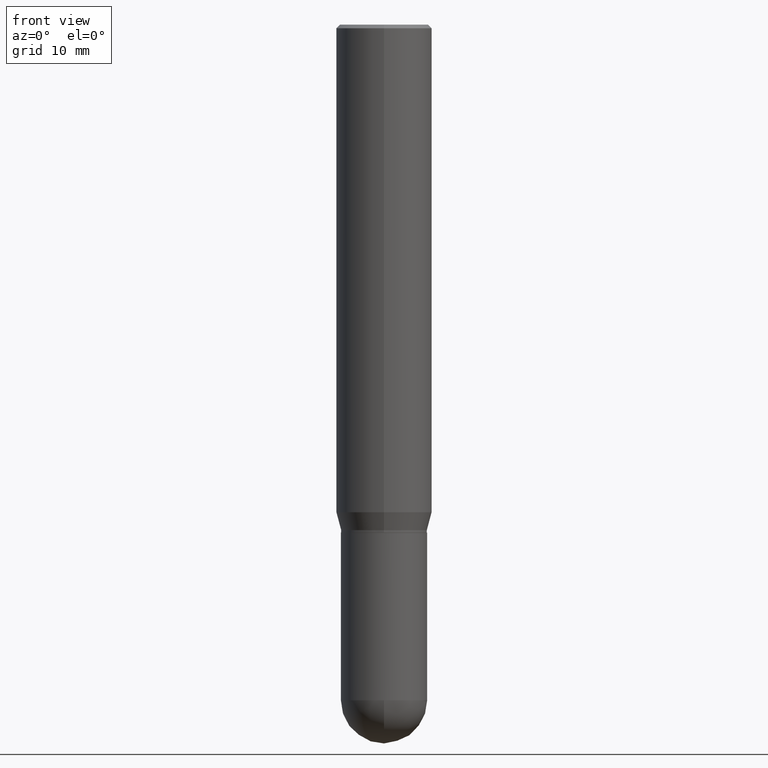
[diagram: clean part render]
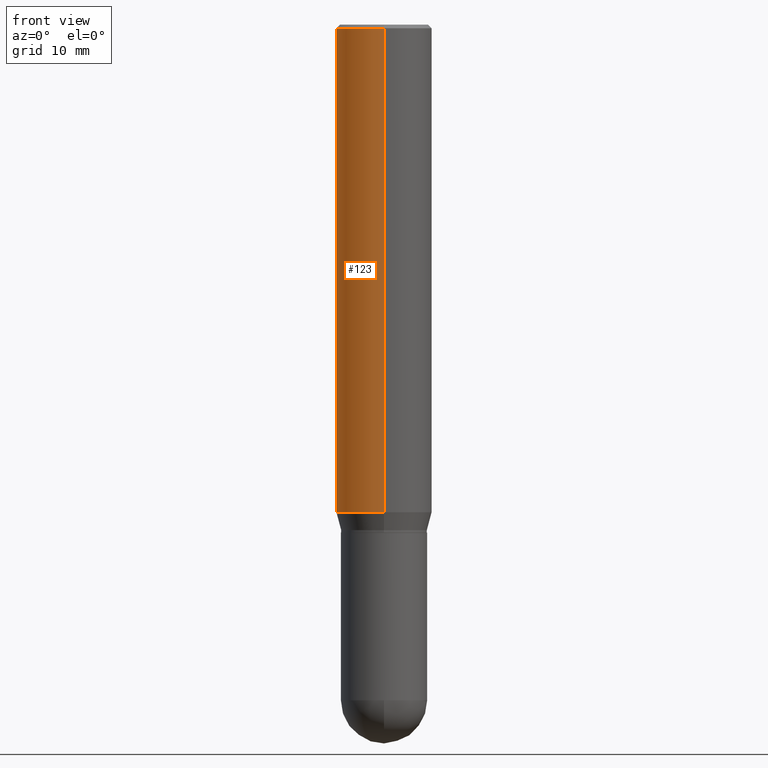
[diagram: same view with one face highlighted and labeled with its STEP entity id]
A machine part, front view. The second image highlights one B-rep face of the part: STEP entity #123.
In plain terms, the highlighted cylindrical surface (partial cylindrical patch) has radius 5 mm, axis along (-0, 0, 1).
Its self-contained STEP definition (entity closure, byte-faithful):
#30 = LINE ( 'NONE', #348, #247 ) ;
#34 = CARTESIAN_POINT ( 'NONE',  ( 1.398703375343805514E-15, 0.1968499999999929750, -2.003178599090894352 ) ) ;
#48 = VERTEX_POINT ( 'NONE', #351 ) ;
#63 = CARTESIAN_POINT ( 'NONE',  ( 3.669094034357428610E-31, -5.235946296048520279E-17, -0.01500000000000083038 ) ) ;
#70 = ORIENTED_EDGE ( 'NONE', *, *, #345, .F. ) ;
#90 = CARTESIAN_POINT ( 'NONE',  ( 0.000000000000000000, 0.000000000000000000, 0.000000000000000000 ) ) ;
#96 = VECTOR ( 'NONE', #245, 39.37007874015748143 ) ;
#106 = CARTESIAN_POINT ( 'NONE',  ( 4.899900431784307607E-29, -6.992357044155365474E-15, -2.003178599090893464 ) ) ;
#111 = VERTEX_POINT ( 'NONE', #301 ) ;
#116 = LINE ( 'NONE', #278, #96 ) ;
#123 = ADVANCED_FACE ( 'NONE', ( #330 ), #453, .T. ) ;
#145 = DIRECTION ( 'NONE',  ( -6.982962677686265133E-15, -1.000000000000000000, 3.491137977679279424E-15 ) ) ;
#153 = DIRECTION ( 'NONE',  ( -6.982962677686265922E-15, -1.000000000000000000, 3.490630864032153582E-15 ) ) ;
#181 = VERTEX_POINT ( 'NONE', #34 ) ;
#203 = EDGE_CURVE ( 'NONE', #181, #208, #422, .T. ) ;
#208 = VERTEX_POINT ( 'NONE', #431 ) ;
#214 = EDGE_CURVE ( 'NONE', #181, #48, #30, .T. ) ;
#237 = ORIENTED_EDGE ( 'NONE', *, *, #203, .T. ) ;
#245 = DIRECTION ( 'NONE',  ( -2.446062689571483486E-29, 3.490630864032153582E-15, 1.000000000000000000 ) ) ;
#247 = VECTOR ( 'NONE', #325, 39.37007874015748143 ) ;
#257 = DIRECTION ( 'NONE',  ( -2.446062689571483486E-29, 3.490630864032153582E-15, 1.000000000000000000 ) ) ;
#261 = CIRCLE ( 'NONE', #500, 0.1968500000000000250 ) ;
#269 = DIRECTION ( 'NONE',  ( -2.446062689571483486E-29, 3.490630864032153582E-15, 1.000000000000000000 ) ) ;
#278 = CARTESIAN_POINT ( 'NONE',  ( -1.374596203102541214E-15, -0.1968499999999999694, 6.871306855847293015E-16 ) ) ;
#282 = AXIS2_PLACEMENT_3D ( 'NONE', #106, #269, #346 ) ;
#301 = CARTESIAN_POINT ( 'NONE',  ( -1.374596203102541017E-15, -0.1968500000000000805, -0.01500000000000014343 ) ) ;
#325 = DIRECTION ( 'NONE',  ( -2.446062689571483486E-29, 3.490630864032153582E-15, 1.000000000000000000 ) ) ;
#330 = FACE_OUTER_BOUND ( 'NONE', #406, .T. ) ;
#345 = EDGE_CURVE ( 'NONE', #48, #111, #261, .T. ) ;
#346 = DIRECTION ( 'NONE',  ( -6.982962677686265922E-15, -1.000000000000000000, 4.163344669033675634E-15 ) ) ;
#348 = CARTESIAN_POINT ( 'NONE',  ( 1.398703375343756802E-15, 0.1968499999999999694, -6.871306855847293015E-16 ) ) ;
#351 = CARTESIAN_POINT ( 'NONE',  ( 1.398703375343806303E-15, 0.1968499999999999139, -0.01500000000000151733 ) ) ;
#381 = EDGE_CURVE ( 'NONE', #208, #111, #116, .T. ) ;
#406 = EDGE_LOOP ( 'NONE', ( #436, #237, #464, #70 ) ) ;
#422 = CIRCLE ( 'NONE', #282, 0.1968499999999999694 ) ;
#431 = CARTESIAN_POINT ( 'NONE',  ( -1.374596203102492502E-15, -0.1968500000000069916, -2.003178599090893020 ) ) ;
#436 = ORIENTED_EDGE ( 'NONE', *, *, #214, .F. ) ;
#453 = CYLINDRICAL_SURFACE ( 'NONE', #490, 0.1968499999999999694 ) ;
#464 = ORIENTED_EDGE ( 'NONE', *, *, #381, .T. ) ;
#490 = AXIS2_PLACEMENT_3D ( 'NONE', #90, #257, #153 ) ;
#500 = AXIS2_PLACEMENT_3D ( 'NONE', #63, #505, #145 ) ;
#505 = DIRECTION ( 'NONE',  ( -2.446062689571483486E-29, 3.490630864032153582E-15, 1.000000000000000000 ) ) ;